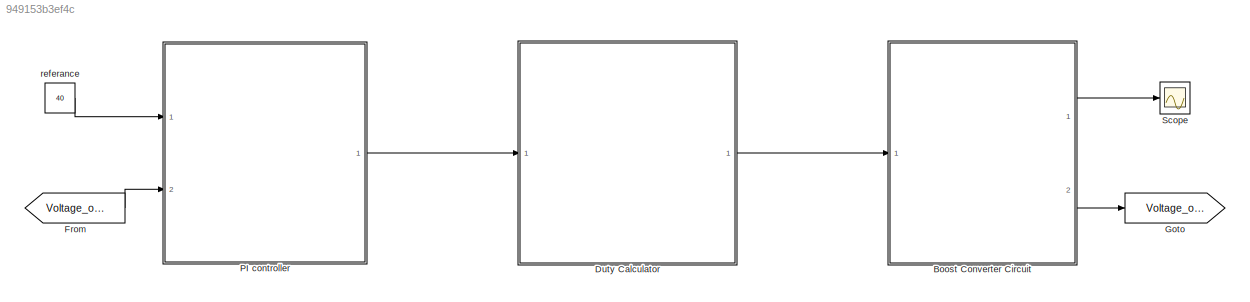
MODEL slx_949153b3ef4c
KIND model
CONFIG AbsTol = auto
CONFIG EnableMultiTasking = off
CONFIG FixedStep = auto
CONFIG MaxStep = auto
CONFIG MinStep = auto
CONFIG RelTol = 1e-3
CONFIG SampleTimeConstraint = Unconstrained
CONFIG SolverName = VariableStepAuto
CONFIG StartTime = 0.0
CONFIG StopTime = 3.0
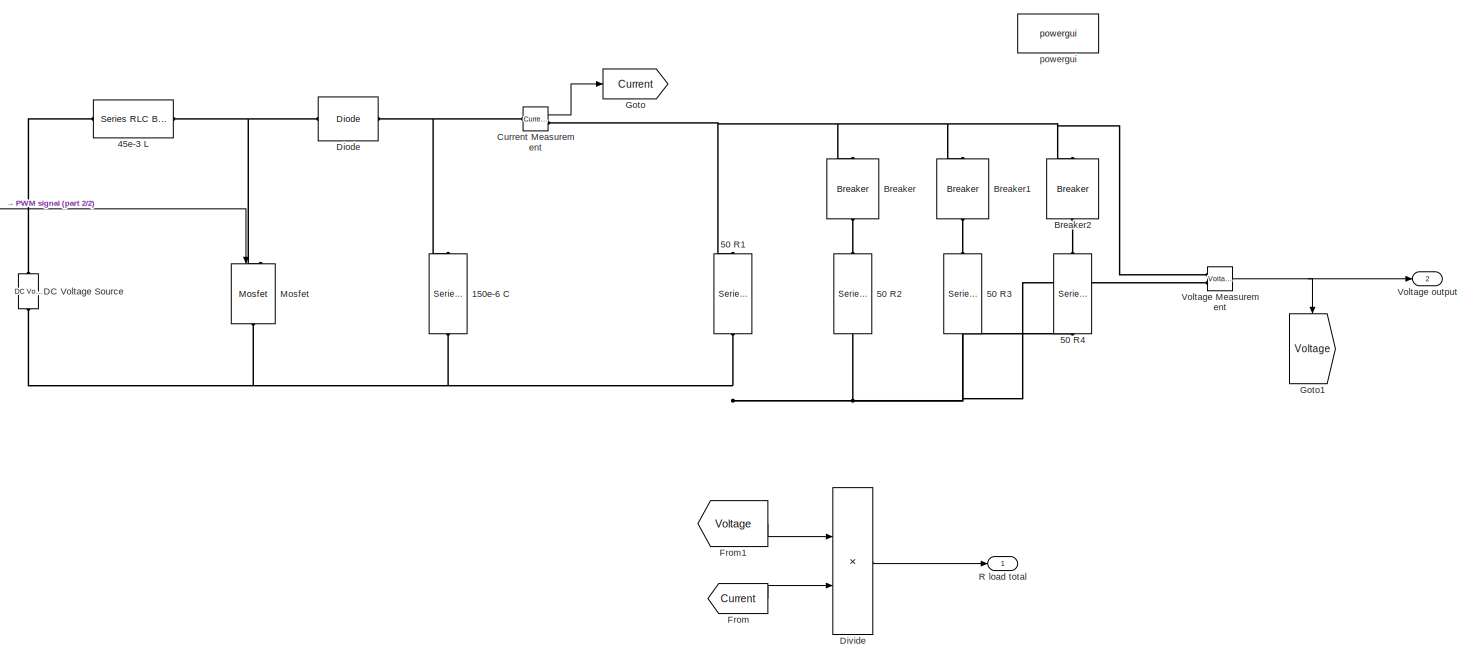
[diagram: Boost Converter Circuit - part 1/2, most of the canvas]
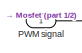
[diagram: Boost Converter Circuit - part 2/2, middle left region]
BLOCK [SubSystem] Boost Converter Circuit
  Ports = [1, 2]
  RequestExecContextInheritance = off
BLOCK [Reference] Boost Converter Circuit/150e-6 C  REF=spsSeriesRLCBranchLib/Series RLC Branch
  NameLocation = left
  Ports = [0, 0, 0, 0, 0, 1, 1]
  SourceBlock = spsSeriesRLCBranchLib/Series RLC Branch
  SourceProductBaseCode = PS
  SourceType = Series RLC Branch
BLOCK [Reference] Boost Converter Circuit/45e-3 L  REF=spsSeriesRLCBranchLib/Series RLC Branch
  Ports = [0, 0, 0, 0, 0, 1, 1]
  SourceBlock = spsSeriesRLCBranchLib/Series RLC Branch
  SourceProductBaseCode = PS
  SourceType = Series RLC Branch
BLOCK [Reference] Boost Converter Circuit/50 R1  REF=spsSeriesRLCBranchLib/Series RLC Branch
  NameLocation = left
  Ports = [0, 0, 0, 0, 0, 1, 1]
  SourceBlock = spsSeriesRLCBranchLib/Series RLC Branch
  SourceProductBaseCode = PS
  SourceType = Series RLC Branch
BLOCK [Reference] Boost Converter Circuit/50 R2  REF=spsSeriesRLCBranchLib/Series RLC Branch
  NameLocation = left
  Ports = [0, 0, 0, 0, 0, 1, 1]
  SourceBlock = spsSeriesRLCBranchLib/Series RLC Branch
  SourceProductBaseCode = PS
  SourceType = Series RLC Branch
BLOCK [Reference] Boost Converter Circuit/50 R3  REF=spsSeriesRLCBranchLib/Series RLC Branch
  NameLocation = left
  Ports = [0, 0, 0, 0, 0, 1, 1]
  SourceBlock = spsSeriesRLCBranchLib/Series RLC Branch
  SourceProductBaseCode = PS
  SourceType = Series RLC Branch
BLOCK [Reference] Boost Converter Circuit/50 R4  REF=spsSeriesRLCBranchLib/Series RLC Branch
  NameLocation = left
  Ports = [0, 0, 0, 0, 0, 1, 1]
  SourceBlock = spsSeriesRLCBranchLib/Series RLC Branch
  SourceProductBaseCode = PS
  SourceType = Series RLC Branch
BLOCK [Reference] Boost Converter Circuit/Breaker  REF=spsBreakerLib/Breaker
  NameLocation = left
  Ports = [0, 0, 0, 0, 0, 1, 1]
  SourceBlock = spsBreakerLib/Breaker
  SourceProductBaseCode = PS
  SourceType = Breaker
BLOCK [Reference] Boost Converter Circuit/Breaker1  REF=spsBreakerLib/Breaker
  NameLocation = left
  Ports = [0, 0, 0, 0, 0, 1, 1]
  SourceBlock = spsBreakerLib/Breaker
  SourceProductBaseCode = PS
  SourceType = Breaker
BLOCK [Reference] Boost Converter Circuit/Breaker2  REF=spsBreakerLib/Breaker
  NameLocation = left
  Ports = [0, 0, 0, 0, 0, 1, 1]
  SourceBlock = spsBreakerLib/Breaker
  SourceProductBaseCode = PS
  SourceType = Breaker
BLOCK [Reference] Boost Converter Circuit/Current Measurement  REF=spsCurrentMeasurementLib/Current Measurement
  Ports = [0, 1, 0, 0, 0, 1, 1]
  SourceBlock = spsCurrentMeasurementLib/Current Measurement
  SourceProductBaseCode = PS
  SourceType = Current Measurement
  UserDataPersistent = on
BLOCK [Reference] Boost Converter Circuit/DC Voltage Source  REF=spsDCVoltageSourceLib/DC Voltage Source
  Ports = [0, 0, 0, 0, 0, 1, 1]
  SourceBlock = spsDCVoltageSourceLib/DC Voltage Source
  SourceProductBaseCode = PS
  SourceType = DC Voltage Source
BLOCK [Reference] Boost Converter Circuit/Diode  REF=spsDiodeLib/Diode
  Ports = [0, 0, 0, 0, 0, 1, 1]
  SourceBlock = spsDiodeLib/Diode
  SourceProductBaseCode = PS
  SourceType = Diode
BLOCK [Product] Boost Converter Circuit/Divide
  Inputs = */
  Ports = [2, 1]
BLOCK [From] Boost Converter Circuit/From
  GotoTag = Current
BLOCK [From] Boost Converter Circuit/From1
  GotoTag = Voltage
BLOCK [Goto] Boost Converter Circuit/Goto
  GotoTag = Current
BLOCK [Goto] Boost Converter Circuit/Goto1
  GotoTag = Voltage
  NameLocation = left
BLOCK [Reference] Boost Converter Circuit/Mosfet  REF=spsMosfetLib/Mosfet
  NameLocation = left
  Ports = [1, 0, 0, 0, 0, 1, 1]
  SourceBlock = spsMosfetLib/Mosfet
  SourceProductBaseCode = PS
  SourceType = Mosfet
BLOCK [Inport] Boost Converter Circuit/PWM signal
BLOCK [Outport] Boost Converter Circuit/R load total
BLOCK [Reference] Boost Converter Circuit/Voltage Measurement  REF=spsVoltageMeasurementLib/Voltage Measurement
  Ports = [0, 1, 0, 0, 0, 2]
  SourceBlock = spsVoltageMeasurementLib/Voltage Measurement
  SourceProductBaseCode = PS
  SourceType = Voltage Measurement
  UserDataPersistent = on
BLOCK [Outport] Boost Converter Circuit/Voltage output
  Port = 2
BLOCK [Reference] Boost Converter Circuit/powergui  REF=spspowerguiLib/powergui
  Ports = []
  Priority = 1
  SourceBlock = spspowerguiLib/powergui
  SourceProductBaseCode = PS
  SourceType = PSB option menu block
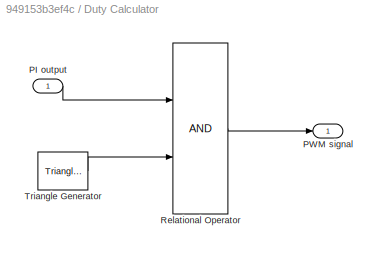
BLOCK [SubSystem] Duty Calculator
  Ports = [1, 1]
  RequestExecContextInheritance = off
BLOCK [Inport] Duty Calculator/PI output
BLOCK [Outport] Duty Calculator/PWM signal
BLOCK [RelationalOperator] Duty Calculator/Relational Operator
  InputSameDT = off
  OutDataTypeStr = boolean
  Ports = [2, 1]
  RndMeth = Simplest
BLOCK [Reference] Duty Calculator/Triangle Generator  REF=spsTriangleGeneratorLib/Triangle
Generator
  Ports = [0, 1]
  SourceBlock = spsTriangleGeneratorLib/Triangle\nGenerator
  SourceProductBaseCode = PS
  SourceType = Triangle Generator
BLOCK [From] From
  GotoTag = Voltage_output
BLOCK [Goto] Goto
  GotoTag = Voltage_output
BLOCK [ModelReference] PI controller
  ModelNameDialog = Kontrol.slx
  ModelReferenceVersion = 1.4
  Ports = [2, 1]
BLOCK [Scope] Scope
  Floating = off
  NumInputPorts = 1
  Ports = [1]
  ScopeSpecificationString = Simulink.scopes.TimeScopeBlockCfg('CurrentConfiguration', extmgr.ConfigurationSet(extmgr.Configuration('Core','General UI',true),extmgr.Configuration('Core','Source UI',true),extmgr.Configuration('Sources','WiredSimulink',true),extmgr.Configuration('Visuals','Time Domain',true,'SerializedDisplays',{struct('MinYLimReal','7.81555','MaxYLimReal','54.67883','YLabelReal','','MinYLimMag','7.81555','MaxY...<+1362ch>
BLOCK [Constant] referance
  Value = 40
LINE Boost Converter Circuit/Current Measurement:1 -> Boost Converter Circuit/Goto:1
LINE Boost Converter Circuit/Divide:1 -> Boost Converter Circuit/R load total:1
LINE Boost Converter Circuit/From1:1 -> Boost Converter Circuit/Divide:1
LINE Boost Converter Circuit/From:1 -> Boost Converter Circuit/Divide:2
LINE Boost Converter Circuit/PWM signal:1 -> Boost Converter Circuit/Mosfet:1
NET Boost Converter Circuit/Voltage Measurement:1 -> Boost Converter Circuit/Goto1:1, Boost Converter Circuit/Voltage output:1
LINE Boost Converter Circuit:1 -> Scope:1
LINE Boost Converter Circuit:2 -> Goto:1
LINE Duty Calculator/PI output:1 -> Duty Calculator/Relational Operator:1
LINE Duty Calculator/Relational Operator:1 -> Duty Calculator/PWM signal:1
LINE Duty Calculator/Triangle Generator:1 -> Duty Calculator/Relational Operator:2
LINE Duty Calculator:1 -> Boost Converter Circuit:1
LINE From:1 -> PI controller:2
LINE PI controller:1 -> Duty Calculator:1
LINE referance:1 -> PI controller:1
PNET net1: Boost Converter Circuit/150e-6 C:LConn1 -- Boost Converter Circuit/Current Measurement:LConn1 -- Boost Converter Circuit/Diode:RConn1
PNET net2: Boost Converter Circuit/150e-6 C:RConn1 -- Boost Converter Circuit/50 R1:RConn1 -- Boost Converter Circuit/50 R2:RConn1 -- Boost Converter Circuit/50 R3:RConn1 -- Boost Converter Circuit/50 R4:RConn1 -- Boost Converter Circuit/DC Voltage Source:LConn1 -- Boost Converter Circuit/Mosfet:RConn1 -- Boost Converter Circuit/Voltage Measurement:LConn2
PLINE Boost Converter Circuit/45e-3 L:LConn1 -- Boost Converter Circuit/DC Voltage Source:RConn1
PNET net3: Boost Converter Circuit/45e-3 L:RConn1 -- Boost Converter Circuit/Diode:LConn1 -- Boost Converter Circuit/Mosfet:LConn1
PNET net4: Boost Converter Circuit/50 R1:LConn1 -- Boost Converter Circuit/Breaker1:LConn1 -- Boost Converter Circuit/Breaker2:LConn1 -- Boost Converter Circuit/Breaker:LConn1 -- Boost Converter Circuit/Current Measurement:RConn1 -- Boost Converter Circuit/Voltage Measurement:LConn1
PLINE Boost Converter Circuit/50 R2:LConn1 -- Boost Converter Circuit/Breaker:RConn1
PLINE Boost Converter Circuit/50 R3:LConn1 -- Boost Converter Circuit/Breaker1:RConn1
PLINE Boost Converter Circuit/50 R4:LConn1 -- Boost Converter Circuit/Breaker2:RConn1
note: NET lines group one-source signal fan-out (src -> all destinations, sorted); 1:1 wires keep LINE; PNET lines group multi-terminal physical nets as a canonical sorted terminal list (undirected conserving connections); 2-terminal nets keep the pairwise PLINE form
